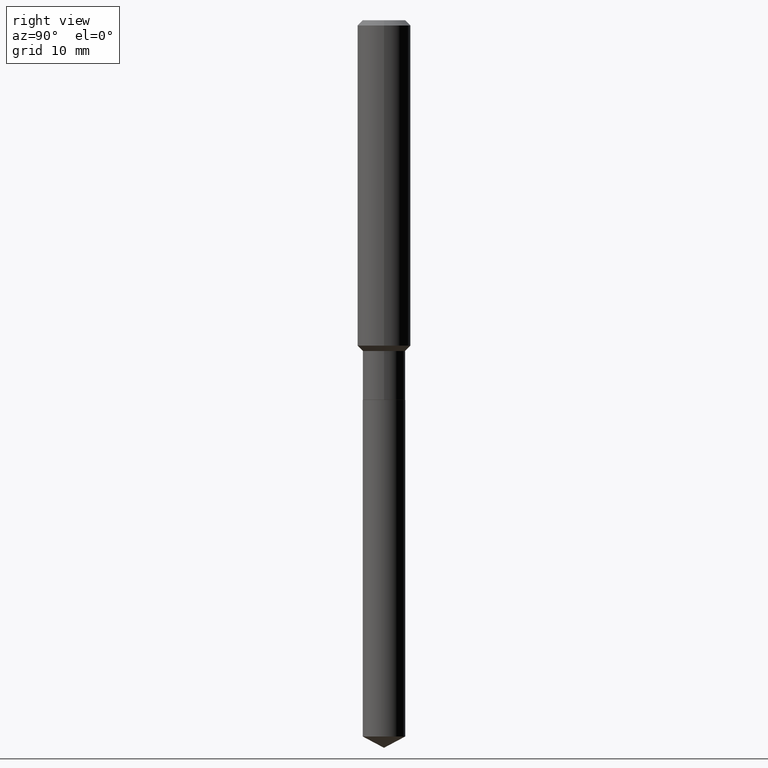
[diagram: clean part render]
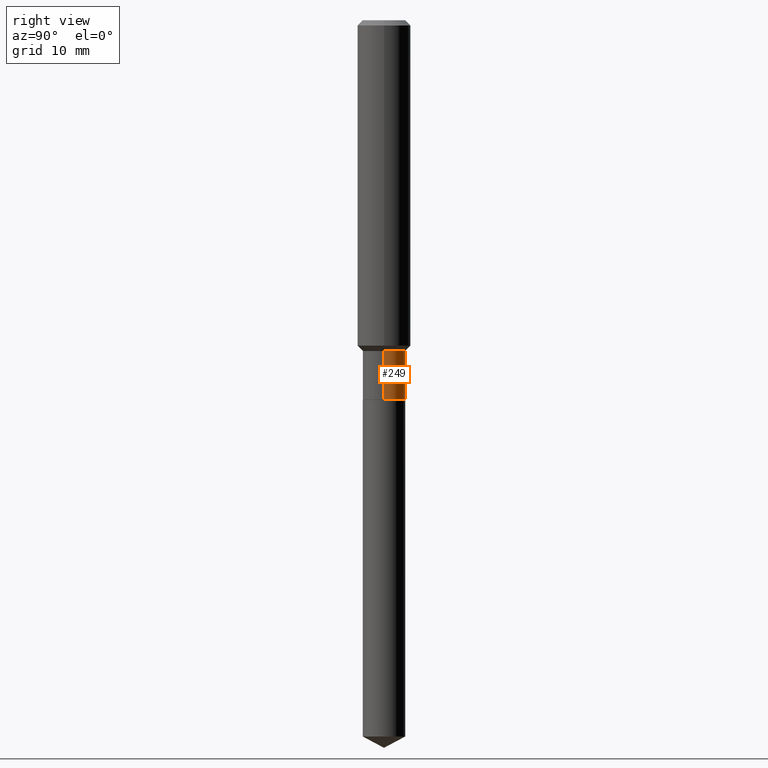
[diagram: same view with one face highlighted and labeled with its STEP entity id]
A machine part, right view. The second image highlights one B-rep face of the part: STEP entity #249.
In plain terms, the highlighted cylindrical surface (edge-blend (fillet) strip) has radius 2.4003 mm, axis along (-0, 0, 1).
Its self-contained STEP definition (entity closure, byte-faithful):
#19 = CIRCLE ( 'NONE', #296, 0.09449999999999998679 ) ;
#25 = CARTESIAN_POINT ( 'NONE',  ( 4.119392204018863440E-29, -5.881400315281279815E-15, -1.684500000000000330 ) ) ;
#60 = DIRECTION ( 'NONE',  ( -2.445468806185136597E-29, 3.491481338843145583E-15, 1.000000000000000000 ) ) ;
#64 = DIRECTION ( 'NONE',  ( 1.000000000000000000, -6.982962677686266711E-15, 0.000000000000000000 ) ) ;
#73 = CARTESIAN_POINT ( 'NONE',  ( -0.09449999999999998679, -4.831286278790446219E-15, -1.684500000000000330 ) ) ;
#78 = VERTEX_POINT ( 'NONE', #73 ) ;
#87 = AXIS2_PLACEMENT_3D ( 'NONE', #400, #60, #252 ) ;
#97 = CARTESIAN_POINT ( 'NONE',  ( 0.09449999999999995903, -5.783987985927553605E-15, -1.467600000000000238 ) ) ;
#105 = CARTESIAN_POINT ( 'NONE',  ( -0.09449999999999995903, -4.831286278790446219E-15, -1.467600000000000238 ) ) ;
#111 = CARTESIAN_POINT ( 'NONE',  ( -0.09449999999999997291, 6.714628852932944832E-16, -4.648393660290884930E-30 ) ) ;
#117 = VECTOR ( 'NONE', #148, 39.37007874015748143 ) ;
#138 = DIRECTION ( 'NONE',  ( -2.445468806185136597E-29, 3.491481338843145583E-15, 1.000000000000000000 ) ) ;
#139 = ORIENTED_EDGE ( 'NONE', *, *, #374, .F. ) ;
#141 = AXIS2_PLACEMENT_3D ( 'NONE', #480, #138, #446 ) ;
#148 = DIRECTION ( 'NONE',  ( -2.445468806185136877E-29, 3.491481338843145188E-15, 1.000000000000000000 ) ) ;
#150 = ORIENTED_EDGE ( 'NONE', *, *, #402, .T. ) ;
#176 = DIRECTION ( 'NONE',  ( -2.445468806185136597E-29, 3.491481338843145583E-15, 1.000000000000000000 ) ) ;
#183 = DIRECTION ( 'NONE',  ( -2.445468806185136877E-29, 3.491481338843145188E-15, 1.000000000000000000 ) ) ;
#213 = LINE ( 'NONE', #489, #117 ) ;
#220 = CARTESIAN_POINT ( 'NONE',  ( 0.09449999999999998679, -6.541290288322631830E-15, -1.684500000000000330 ) ) ;
#234 = VERTEX_POINT ( 'NONE', #97 ) ;
#240 = ORIENTED_EDGE ( 'NONE', *, *, #444, .F. ) ;
#249 = ADVANCED_FACE ( 'NONE', ( #250 ), #398, .T. ) ;
#250 = FACE_OUTER_BOUND ( 'NONE', #460, .T. ) ;
#252 = DIRECTION ( 'NONE',  ( 1.000000000000000000, -6.982962677686266711E-15, 4.876176775795935793E-29 ) ) ;
#255 = EDGE_CURVE ( 'NONE', #319, #78, #19, .T. ) ;
#296 = AXIS2_PLACEMENT_3D ( 'NONE', #25, #176, #64 ) ;
#314 = VERTEX_POINT ( 'NONE', #105 ) ;
#319 = VERTEX_POINT ( 'NONE', #220 ) ;
#374 = EDGE_CURVE ( 'NONE', #319, #234, #213, .T. ) ;
#396 = CIRCLE ( 'NONE', #141, 0.09449999999999995903 ) ;
#398 = CYLINDRICAL_SURFACE ( 'NONE', #87, 0.09449999999999997291 ) ;
#400 = CARTESIAN_POINT ( 'NONE',  ( 0.000000000000000000, 0.000000000000000000, 0.000000000000000000 ) ) ;
#402 = EDGE_CURVE ( 'NONE', #78, #314, #450, .T. ) ;
#434 = ORIENTED_EDGE ( 'NONE', *, *, #255, .T. ) ;
#444 = EDGE_CURVE ( 'NONE', #234, #314, #396, .T. ) ;
#446 = DIRECTION ( 'NONE',  ( 1.000000000000000000, -6.982962677686269077E-15, 0.000000000000000000 ) ) ;
#449 = VECTOR ( 'NONE', #183, 39.37007874015748143 ) ;
#450 = LINE ( 'NONE', #111, #449 ) ;
#460 = EDGE_LOOP ( 'NONE', ( #434, #150, #240, #139 ) ) ;
#480 = CARTESIAN_POINT ( 'NONE',  ( 3.588970019957307278E-29, -5.124098012886201590E-15, -1.467600000000000238 ) ) ;
#489 = CARTESIAN_POINT ( 'NONE',  ( 0.09449999999999997291, -6.598899730413520148E-16, 4.607987053127158259E-30 ) ) ;